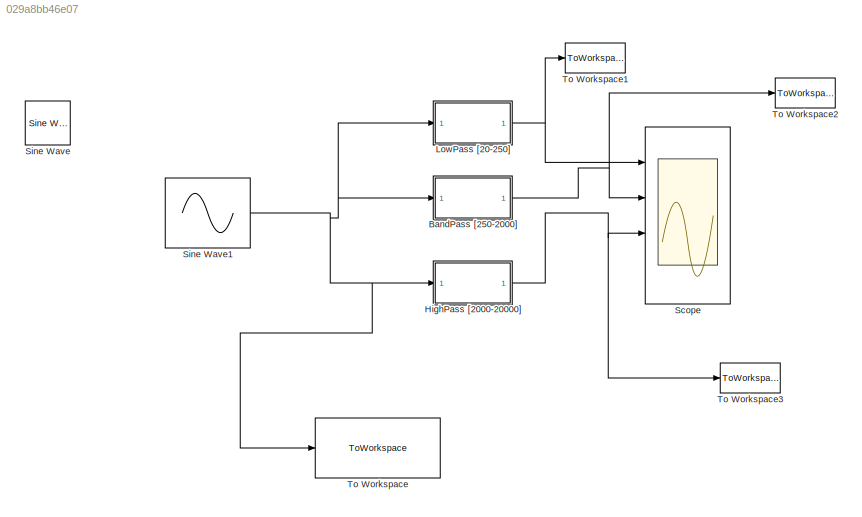
MODEL slx_029a8bb46e07
KIND model
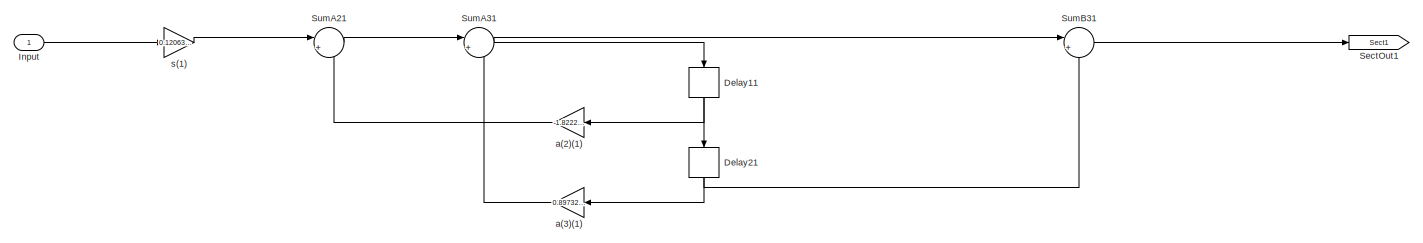
[diagram: BandPass [250-2000] - part 1/3, left side, full height]
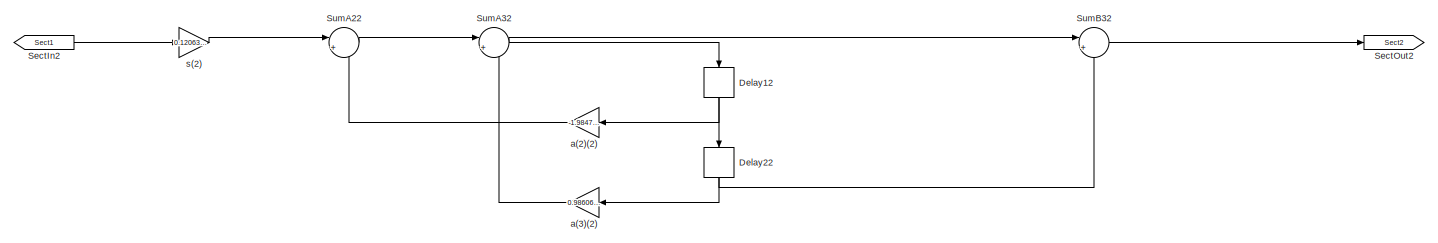
[diagram: BandPass [250-2000] - part 2/3, center side, full height]
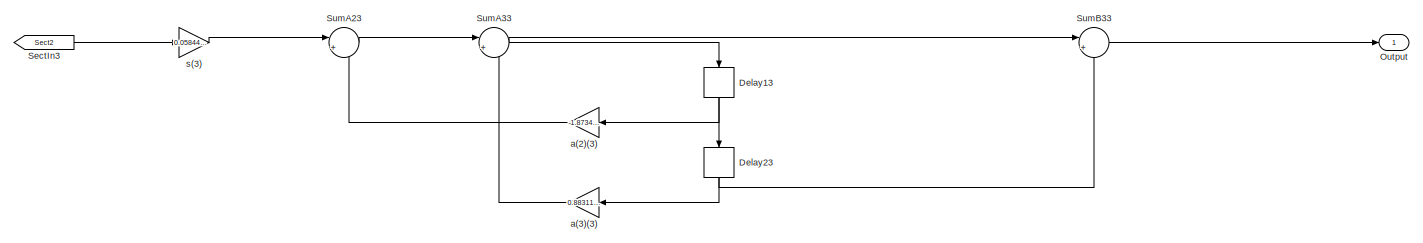
[diagram: BandPass [250-2000] - part 3/3, right side, full height]
BLOCK [SubSystem] BandPass [250-2000]
  ErrorFcn = dspFilterRealizedInBasicElemsAlgLoopErrFcnCallback
  Ports = [1, 1]
  RequestExecContextInheritance = off
  Tag = FilterWizardSubSystem
  UserDataPersistent = on
BLOCK [Delay] BandPass [250-2000]/Delay11
  DelayLength = 1
  InitialCondition = 0
  InputPortMap = u0
  Ports = [1, 1]
BLOCK [Delay] BandPass [250-2000]/Delay12
  DelayLength = 1
  InitialCondition = 0
  InputPortMap = u0
  Ports = [1, 1]
BLOCK [Delay] BandPass [250-2000]/Delay13
  DelayLength = 1
  InitialCondition = 0
  InputPortMap = u0
  Ports = [1, 1]
BLOCK [Delay] BandPass [250-2000]/Delay21
  DelayLength = 1
  InitialCondition = 0
  InputPortMap = u0
  Ports = [1, 1]
BLOCK [Delay] BandPass [250-2000]/Delay22
  DelayLength = 1
  InitialCondition = 0
  InputPortMap = u0
  Ports = [1, 1]
BLOCK [Delay] BandPass [250-2000]/Delay23
  DelayLength = 1
  InitialCondition = 0
  InputPortMap = u0
  Ports = [1, 1]
BLOCK [Inport] BandPass [250-2000]/Input
  IconDisplay = Port number
BLOCK [Outport] BandPass [250-2000]/Output
  IconDisplay = Port number
BLOCK [From] BandPass [250-2000]/SectIn2
  GotoTag = Sect1
BLOCK [From] BandPass [250-2000]/SectIn3
  GotoTag = Sect2
BLOCK [Goto] BandPass [250-2000]/SectOut1
  GotoTag = Sect1
BLOCK [Goto] BandPass [250-2000]/SectOut2
  GotoTag = Sect2
BLOCK [Sum] BandPass [250-2000]/SumA21
  IconShape = round
  InputSameDT = off
  Inputs = |+-
  Ports = [2, 1]
  RndMeth = Nearest
BLOCK [Sum] BandPass [250-2000]/SumA22
  IconShape = round
  InputSameDT = off
  Inputs = |+-
  Ports = [2, 1]
  RndMeth = Nearest
BLOCK [Sum] BandPass [250-2000]/SumA23
  IconShape = round
  InputSameDT = off
  Inputs = |+-
  Ports = [2, 1]
  RndMeth = Nearest
BLOCK [Sum] BandPass [250-2000]/SumA31
  IconShape = round
  InputSameDT = off
  Inputs = |+-
  Ports = [2, 1]
  RndMeth = Nearest
BLOCK [Sum] BandPass [250-2000]/SumA32
  IconShape = round
  InputSameDT = off
  Inputs = |+-
  Ports = [2, 1]
  RndMeth = Nearest
BLOCK [Sum] BandPass [250-2000]/SumA33
  IconShape = round
  InputSameDT = off
  Inputs = |+-
  Ports = [2, 1]
  RndMeth = Nearest
BLOCK [Sum] BandPass [250-2000]/SumB31
  IconShape = round
  InputSameDT = off
  Inputs = |+-
  Ports = [2, 1]
  RndMeth = Nearest
BLOCK [Sum] BandPass [250-2000]/SumB32
  IconShape = round
  InputSameDT = off
  Inputs = |+-
  Ports = [2, 1]
  RndMeth = Nearest
BLOCK [Sum] BandPass [250-2000]/SumB33
  IconShape = round
  InputSameDT = off
  Inputs = |+-
  Ports = [2, 1]
  RndMeth = Nearest
BLOCK [Gain] BandPass [250-2000]/a(2)(1)
  Gain = -1.8222439468229006
  ParamDataTypeStr = double
  RndMeth = Nearest
BLOCK [Gain] BandPass [250-2000]/a(2)(2)
  Gain = -1.9847657876244835
  ParamDataTypeStr = double
  RndMeth = Nearest
BLOCK [Gain] BandPass [250-2000]/a(2)(3)
  Gain = -1.8734732804598271
  ParamDataTypeStr = double
  RndMeth = Nearest
BLOCK [Gain] BandPass [250-2000]/a(3)(1)
  Gain = 0.89732349980267245
  ParamDataTypeStr = double
  RndMeth = Nearest
BLOCK [Gain] BandPass [250-2000]/a(3)(2)
  Gain = 0.9860617879432173
  ParamDataTypeStr = double
  RndMeth = Nearest
BLOCK [Gain] BandPass [250-2000]/a(3)(3)
  Gain = 0.88311535089014226
  ParamDataTypeStr = double
  RndMeth = Nearest
BLOCK [Gain] BandPass [250-2000]/s(1)
  Gain = 0.12063728325831817
  ParamDataTypeStr = double
  RndMeth = Nearest
BLOCK [Gain] BandPass [250-2000]/s(2)
  Gain = 0.12063728325831817
  ParamDataTypeStr = double
  RndMeth = Nearest
BLOCK [Gain] BandPass [250-2000]/s(3)
  Gain = 0.058442324554928891
  ParamDataTypeStr = double
  RndMeth = Nearest
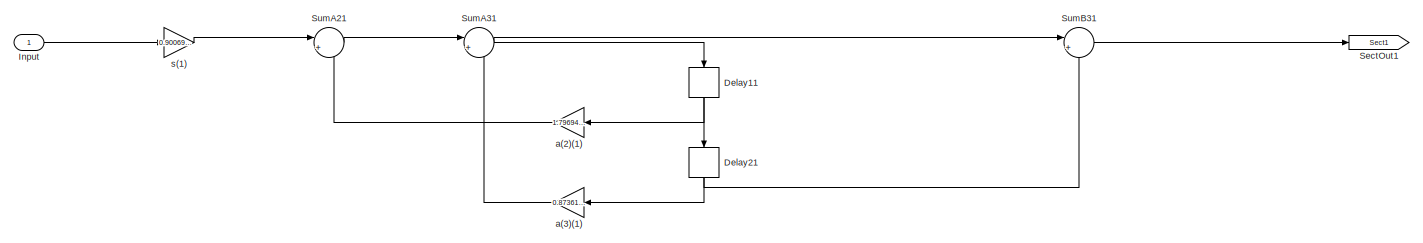
[diagram: HighPass [2000-20000] - part 1/3, left side, full height]
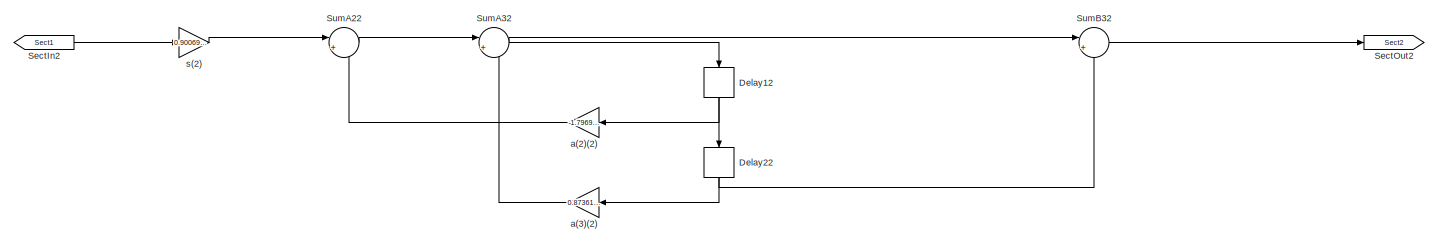
[diagram: HighPass [2000-20000] - part 2/3, center side, full height]
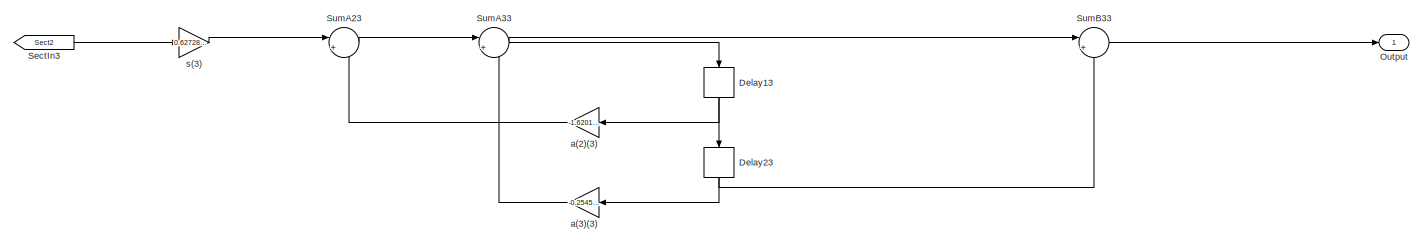
[diagram: HighPass [2000-20000] - part 3/3, right side, full height]
BLOCK [SubSystem] HighPass [2000-20000]
  ErrorFcn = dspFilterRealizedInBasicElemsAlgLoopErrFcnCallback
  Ports = [1, 1]
  RequestExecContextInheritance = off
  Tag = FilterWizardSubSystem
  UserDataPersistent = on
BLOCK [Delay] HighPass [2000-20000]/Delay11
  DelayLength = 1
  InitialCondition = 0
  InputPortMap = u0
  Ports = [1, 1]
BLOCK [Delay] HighPass [2000-20000]/Delay12
  DelayLength = 1
  InitialCondition = 0
  InputPortMap = u0
  Ports = [1, 1]
BLOCK [Delay] HighPass [2000-20000]/Delay13
  DelayLength = 1
  InitialCondition = 0
  InputPortMap = u0
  Ports = [1, 1]
BLOCK [Delay] HighPass [2000-20000]/Delay21
  DelayLength = 1
  InitialCondition = 0
  InputPortMap = u0
  Ports = [1, 1]
BLOCK [Delay] HighPass [2000-20000]/Delay22
  DelayLength = 1
  InitialCondition = 0
  InputPortMap = u0
  Ports = [1, 1]
BLOCK [Delay] HighPass [2000-20000]/Delay23
  DelayLength = 1
  InitialCondition = 0
  InputPortMap = u0
  Ports = [1, 1]
BLOCK [Inport] HighPass [2000-20000]/Input
  IconDisplay = Port number
BLOCK [Outport] HighPass [2000-20000]/Output
  IconDisplay = Port number
BLOCK [From] HighPass [2000-20000]/SectIn2
  GotoTag = Sect1
BLOCK [From] HighPass [2000-20000]/SectIn3
  GotoTag = Sect2
BLOCK [Goto] HighPass [2000-20000]/SectOut1
  GotoTag = Sect1
BLOCK [Goto] HighPass [2000-20000]/SectOut2
  GotoTag = Sect2
BLOCK [Sum] HighPass [2000-20000]/SumA21
  IconShape = round
  InputSameDT = off
  Inputs = |+-
  Ports = [2, 1]
  RndMeth = Nearest
BLOCK [Sum] HighPass [2000-20000]/SumA22
  IconShape = round
  InputSameDT = off
  Inputs = |+-
  Ports = [2, 1]
  RndMeth = Nearest
BLOCK [Sum] HighPass [2000-20000]/SumA23
  IconShape = round
  InputSameDT = off
  Inputs = |+-
  Ports = [2, 1]
  RndMeth = Nearest
BLOCK [Sum] HighPass [2000-20000]/SumA31
  IconShape = round
  InputSameDT = off
  Inputs = |+-
  Ports = [2, 1]
  RndMeth = Nearest
BLOCK [Sum] HighPass [2000-20000]/SumA32
  IconShape = round
  InputSameDT = off
  Inputs = |+-
  Ports = [2, 1]
  RndMeth = Nearest
BLOCK [Sum] HighPass [2000-20000]/SumA33
  IconShape = round
  InputSameDT = off
  Inputs = |+-
  Ports = [2, 1]
  RndMeth = Nearest
BLOCK [Sum] HighPass [2000-20000]/SumB31
  IconShape = round
  InputSameDT = off
  Inputs = |+-
  Ports = [2, 1]
  RndMeth = Nearest
BLOCK [Sum] HighPass [2000-20000]/SumB32
  IconShape = round
  InputSameDT = off
  Inputs = |+-
  Ports = [2, 1]
  RndMeth = Nearest
BLOCK [Sum] HighPass [2000-20000]/SumB33
  IconShape = round
  InputSameDT = off
  Inputs = |+-
  Ports = [2, 1]
  RndMeth = Nearest
BLOCK [Gain] HighPass [2000-20000]/a(2)(1)
  Gain = 1.7969485764693973
  ParamDataTypeStr = double
  RndMeth = Nearest
BLOCK [Gain] HighPass [2000-20000]/a(2)(2)
  Gain = -1.7969485764693991
  ParamDataTypeStr = double
  RndMeth = Nearest
BLOCK [Gain] HighPass [2000-20000]/a(2)(3)
  Gain = -1.6201479528634418e-16
  ParamDataTypeStr = double
  RndMeth = Nearest
BLOCK [Gain] HighPass [2000-20000]/a(3)(1)
  Gain = 0.87361347098914632
  ParamDataTypeStr = double
  RndMeth = Nearest
BLOCK [Gain] HighPass [2000-20000]/a(3)(2)
  Gain = 0.87361347098914788
  ParamDataTypeStr = double
  RndMeth = Nearest
BLOCK [Gain] HighPass [2000-20000]/a(3)(3)
  Gain = -0.25456315153165321
  ParamDataTypeStr = double
  RndMeth = Nearest
BLOCK [Gain] HighPass [2000-20000]/s(1)
  Gain = 0.90069386325082867
  ParamDataTypeStr = double
  RndMeth = Nearest
BLOCK [Gain] HighPass [2000-20000]/s(2)
  Gain = 0.90069386325082867
  ParamDataTypeStr = double
  RndMeth = Nearest
BLOCK [Gain] HighPass [2000-20000]/s(3)
  Gain = 0.62728157576582666
  ParamDataTypeStr = double
  RndMeth = Nearest
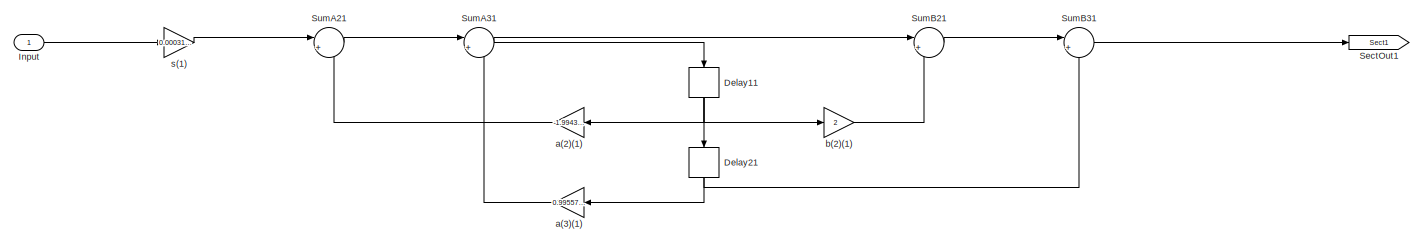
[diagram: LowPass [20-250] - part 1/3, left side, full height]
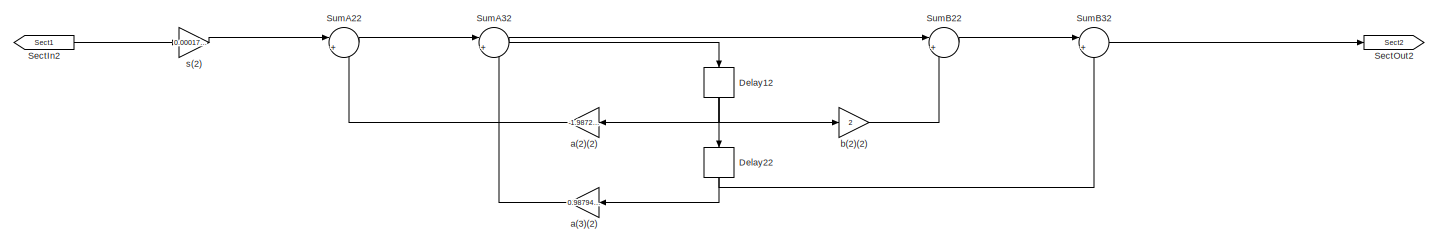
[diagram: LowPass [20-250] - part 2/3, center side, full height]
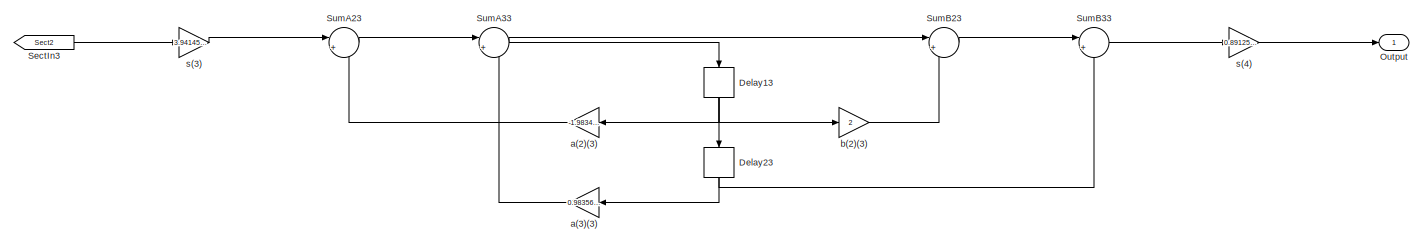
[diagram: LowPass [20-250] - part 3/3, right side, full height]
BLOCK [SubSystem] LowPass [20-250]
  ErrorFcn = dspFilterRealizedInBasicElemsAlgLoopErrFcnCallback
  Ports = [1, 1]
  RequestExecContextInheritance = off
  Tag = FilterWizardSubSystem
  UserDataPersistent = on
BLOCK [Delay] LowPass [20-250]/Delay11
  DelayLength = 1
  InitialCondition = 0
  InputPortMap = u0
  Ports = [1, 1]
BLOCK [Delay] LowPass [20-250]/Delay12
  DelayLength = 1
  InitialCondition = 0
  InputPortMap = u0
  Ports = [1, 1]
BLOCK [Delay] LowPass [20-250]/Delay13
  DelayLength = 1
  InitialCondition = 0
  InputPortMap = u0
  Ports = [1, 1]
BLOCK [Delay] LowPass [20-250]/Delay21
  DelayLength = 1
  InitialCondition = 0
  InputPortMap = u0
  Ports = [1, 1]
BLOCK [Delay] LowPass [20-250]/Delay22
  DelayLength = 1
  InitialCondition = 0
  InputPortMap = u0
  Ports = [1, 1]
BLOCK [Delay] LowPass [20-250]/Delay23
  DelayLength = 1
  InitialCondition = 0
  InputPortMap = u0
  Ports = [1, 1]
BLOCK [Inport] LowPass [20-250]/Input
  IconDisplay = Port number
BLOCK [Outport] LowPass [20-250]/Output
  IconDisplay = Port number
BLOCK [From] LowPass [20-250]/SectIn2
  GotoTag = Sect1
BLOCK [From] LowPass [20-250]/SectIn3
  GotoTag = Sect2
BLOCK [Goto] LowPass [20-250]/SectOut1
  GotoTag = Sect1
BLOCK [Goto] LowPass [20-250]/SectOut2
  GotoTag = Sect2
BLOCK [Sum] LowPass [20-250]/SumA21
  IconShape = round
  InputSameDT = off
  Inputs = |+-
  Ports = [2, 1]
  RndMeth = Nearest
BLOCK [Sum] LowPass [20-250]/SumA22
  IconShape = round
  InputSameDT = off
  Inputs = |+-
  Ports = [2, 1]
  RndMeth = Nearest
BLOCK [Sum] LowPass [20-250]/SumA23
  IconShape = round
  InputSameDT = off
  Inputs = |+-
  Ports = [2, 1]
  RndMeth = Nearest
BLOCK [Sum] LowPass [20-250]/SumA31
  IconShape = round
  InputSameDT = off
  Inputs = |+-
  Ports = [2, 1]
  RndMeth = Nearest
BLOCK [Sum] LowPass [20-250]/SumA32
  IconShape = round
  InputSameDT = off
  Inputs = |+-
  Ports = [2, 1]
  RndMeth = Nearest
BLOCK [Sum] LowPass [20-250]/SumA33
  IconShape = round
  InputSameDT = off
  Inputs = |+-
  Ports = [2, 1]
  RndMeth = Nearest
BLOCK [Sum] LowPass [20-250]/SumB21
  IconShape = round
  InputSameDT = off
  Inputs = |++
  Ports = [2, 1]
  RndMeth = Nearest
BLOCK [Sum] LowPass [20-250]/SumB22
  IconShape = round
  InputSameDT = off
  Inputs = |++
  Ports = [2, 1]
  RndMeth = Nearest
BLOCK [Sum] LowPass [20-250]/SumB23
  IconShape = round
  InputSameDT = off
  Inputs = |++
  Ports = [2, 1]
  RndMeth = Nearest
BLOCK [Sum] LowPass [20-250]/SumB31
  IconShape = round
  InputSameDT = off
  Inputs = |++
  Ports = [2, 1]
  RndMeth = Nearest
BLOCK [Sum] LowPass [20-250]/SumB32
  IconShape = round
  InputSameDT = off
  Inputs = |++
  Ports = [2, 1]
  RndMeth = Nearest
BLOCK [Sum] LowPass [20-250]/SumB33
  IconShape = round
  InputSameDT = off
  Inputs = |++
  Ports = [2, 1]
  RndMeth = Nearest
BLOCK [Gain] LowPass [20-250]/a(2)(1)
  Gain = -1.9943112985072202
  ParamDataTypeStr = double
  RndMeth = Nearest
BLOCK [Gain] LowPass [20-250]/a(2)(2)
  Gain = -1.9872379053064775
  ParamDataTypeStr = double
  RndMeth = Nearest
BLOCK [Gain] LowPass [20-250]/a(2)(3)
  Gain = -1.9834081595064164
  ParamDataTypeStr = double
  RndMeth = Nearest
BLOCK [Gain] LowPass [20-250]/a(3)(1)
  Gain = 0.99557104476447722
  ParamDataTypeStr = double
  RndMeth = Nearest
BLOCK [Gain] LowPass [20-250]/a(3)(2)
  Gain = 0.98794444997925868
  ParamDataTypeStr = double
  RndMeth = Nearest
BLOCK [Gain] LowPass [20-250]/a(3)(3)
  Gain = 0.98356581767528617
  ParamDataTypeStr = double
  RndMeth = Nearest
BLOCK [Gain] LowPass [20-250]/b(2)(1)
  Gain = 2
  ParamDataTypeStr = double
  RndMeth = Nearest
BLOCK [Gain] LowPass [20-250]/b(2)(2)
  Gain = 2
  ParamDataTypeStr = double
  RndMeth = Nearest
BLOCK [Gain] LowPass [20-250]/b(2)(3)
  Gain = 2
  ParamDataTypeStr = double
  RndMeth = Nearest
BLOCK [Gain] LowPass [20-250]/s(1)
  Gain = 0.00031493656431420792
  ParamDataTypeStr = double
  RndMeth = Nearest
BLOCK [Gain] LowPass [20-250]/s(2)
  Gain = 0.00017663616819536151
  ParamDataTypeStr = double
  RndMeth = Nearest
BLOCK [Gain] LowPass [20-250]/s(3)
  Gain = 3.9414542217479411e-05
  ParamDataTypeStr = double
  RndMeth = Nearest
BLOCK [Gain] LowPass [20-250]/s(4)
  Gain = 0.89125093813374556
  ParamDataTypeStr = double
  RndMeth = Nearest
BLOCK [Scope] Scope
  Floating = off
  NumInputPorts = 4
  Ports = [4]
  ShowLegends = off
  YMax = 2e-05~1~0.1~1
  YMin = -2e-05~-1~-0.1~-1
BLOCK [Reference] Sine Wave  REF=dspsrcs4/Sine Wave
  Amplitude = 1
  CompMethod = Trigonometric fcn
  Frequency = 9000
  LastOutDataTypeStr = double
  OutComplex = Real
  OutDataTypeStr = double
  Phase = 0
  Ports = [0, 1]
  ResetState = Restart at time zero
  SampleMode = Discrete
  SampleTime = 1/44000
  SamplesPerFrame = 1
  SourceBlock = dspsrcs4/Sine Wave
  SourceType = Sine Wave
  TableSize = Speed
  additionalParams = off
  allowOverrides = on
  dataType = double
  fracBitsMode = Best precision
  numFracBits = 15
  udDataType = sfix(16)
  wordLen = 16
BLOCK [Sin] Sine Wave1
  Frequency = 2*pi*9000
  Ports = [0, 1]
  SampleTime = 1/44000
BLOCK [ToWorkspace] To Workspace
  FixptAsFi = on
  MaxDataPoints = 1024
  Ports = [1]
  SampleTime = -1
  Save2DSignal = 3-D array (concatenate along third dimension)
  VariableName = SenalEntrada
BLOCK [ToWorkspace] To Workspace1
  FixptAsFi = on
  MaxDataPoints = 1024
  Ports = [1]
  SampleTime = -1
  Save2DSignal = 3-D array (concatenate along third dimension)
  VariableName = Filtro1
BLOCK [ToWorkspace] To Workspace2
  FixptAsFi = on
  MaxDataPoints = 1024
  Ports = [1]
  SampleTime = -1
  Save2DSignal = 3-D array (concatenate along third dimension)
  VariableName = Filtro2
BLOCK [ToWorkspace] To Workspace3
  FixptAsFi = on
  MaxDataPoints = 1024
  Ports = [1]
  SampleTime = -1
  Save2DSignal = 3-D array (concatenate along third dimension)
  VariableName = Filtro3
NET BandPass [250-2000]/Delay11:1 -> BandPass [250-2000]/Delay21:1, BandPass [250-2000]/a(2)(1):1
NET BandPass [250-2000]/Delay12:1 -> BandPass [250-2000]/Delay22:1, BandPass [250-2000]/a(2)(2):1
NET BandPass [250-2000]/Delay13:1 -> BandPass [250-2000]/Delay23:1, BandPass [250-2000]/a(2)(3):1
NET BandPass [250-2000]/Delay21:1 -> BandPass [250-2000]/SumB31:2, BandPass [250-2000]/a(3)(1):1
NET BandPass [250-2000]/Delay22:1 -> BandPass [250-2000]/SumB32:2, BandPass [250-2000]/a(3)(2):1
NET BandPass [250-2000]/Delay23:1 -> BandPass [250-2000]/SumB33:2, BandPass [250-2000]/a(3)(3):1
LINE BandPass [250-2000]/Input:1 -> BandPass [250-2000]/s(1):1
LINE BandPass [250-2000]/SectIn2:1 -> BandPass [250-2000]/s(2):1
LINE BandPass [250-2000]/SectIn3:1 -> BandPass [250-2000]/s(3):1
LINE BandPass [250-2000]/SumA21:1 -> BandPass [250-2000]/SumA31:1
LINE BandPass [250-2000]/SumA22:1 -> BandPass [250-2000]/SumA32:1
LINE BandPass [250-2000]/SumA23:1 -> BandPass [250-2000]/SumA33:1
NET BandPass [250-2000]/SumA31:1 -> BandPass [250-2000]/Delay11:1, BandPass [250-2000]/SumB31:1
NET BandPass [250-2000]/SumA32:1 -> BandPass [250-2000]/Delay12:1, BandPass [250-2000]/SumB32:1
NET BandPass [250-2000]/SumA33:1 -> BandPass [250-2000]/Delay13:1, BandPass [250-2000]/SumB33:1
LINE BandPass [250-2000]/SumB31:1 -> BandPass [250-2000]/SectOut1:1
LINE BandPass [250-2000]/SumB32:1 -> BandPass [250-2000]/SectOut2:1
LINE BandPass [250-2000]/SumB33:1 -> BandPass [250-2000]/Output:1
LINE BandPass [250-2000]/a(2)(1):1 -> BandPass [250-2000]/SumA21:2
LINE BandPass [250-2000]/a(2)(2):1 -> BandPass [250-2000]/SumA22:2
LINE BandPass [250-2000]/a(2)(3):1 -> BandPass [250-2000]/SumA23:2
LINE BandPass [250-2000]/a(3)(1):1 -> BandPass [250-2000]/SumA31:2
LINE BandPass [250-2000]/a(3)(2):1 -> BandPass [250-2000]/SumA32:2
LINE BandPass [250-2000]/a(3)(3):1 -> BandPass [250-2000]/SumA33:2
LINE BandPass [250-2000]/s(1):1 -> BandPass [250-2000]/SumA21:1
LINE BandPass [250-2000]/s(2):1 -> BandPass [250-2000]/SumA22:1
LINE BandPass [250-2000]/s(3):1 -> BandPass [250-2000]/SumA23:1
NET BandPass [250-2000]:1 -> Scope:2, To Workspace2:1
NET HighPass [2000-20000]/Delay11:1 -> HighPass [2000-20000]/Delay21:1, HighPass [2000-20000]/a(2)(1):1
NET HighPass [2000-20000]/Delay12:1 -> HighPass [2000-20000]/Delay22:1, HighPass [2000-20000]/a(2)(2):1
NET HighPass [2000-20000]/Delay13:1 -> HighPass [2000-20000]/Delay23:1, HighPass [2000-20000]/a(2)(3):1
NET HighPass [2000-20000]/Delay21:1 -> HighPass [2000-20000]/SumB31:2, HighPass [2000-20000]/a(3)(1):1
NET HighPass [2000-20000]/Delay22:1 -> HighPass [2000-20000]/SumB32:2, HighPass [2000-20000]/a(3)(2):1
NET HighPass [2000-20000]/Delay23:1 -> HighPass [2000-20000]/SumB33:2, HighPass [2000-20000]/a(3)(3):1
LINE HighPass [2000-20000]/Input:1 -> HighPass [2000-20000]/s(1):1
LINE HighPass [2000-20000]/SectIn2:1 -> HighPass [2000-20000]/s(2):1
LINE HighPass [2000-20000]/SectIn3:1 -> HighPass [2000-20000]/s(3):1
LINE HighPass [2000-20000]/SumA21:1 -> HighPass [2000-20000]/SumA31:1
LINE HighPass [2000-20000]/SumA22:1 -> HighPass [2000-20000]/SumA32:1
LINE HighPass [2000-20000]/SumA23:1 -> HighPass [2000-20000]/SumA33:1
NET HighPass [2000-20000]/SumA31:1 -> HighPass [2000-20000]/Delay11:1, HighPass [2000-20000]/SumB31:1
NET HighPass [2000-20000]/SumA32:1 -> HighPass [2000-20000]/Delay12:1, HighPass [2000-20000]/SumB32:1
NET HighPass [2000-20000]/SumA33:1 -> HighPass [2000-20000]/Delay13:1, HighPass [2000-20000]/SumB33:1
LINE HighPass [2000-20000]/SumB31:1 -> HighPass [2000-20000]/SectOut1:1
LINE HighPass [2000-20000]/SumB32:1 -> HighPass [2000-20000]/SectOut2:1
LINE HighPass [2000-20000]/SumB33:1 -> HighPass [2000-20000]/Output:1
LINE HighPass [2000-20000]/a(2)(1):1 -> HighPass [2000-20000]/SumA21:2
LINE HighPass [2000-20000]/a(2)(2):1 -> HighPass [2000-20000]/SumA22:2
LINE HighPass [2000-20000]/a(2)(3):1 -> HighPass [2000-20000]/SumA23:2
LINE HighPass [2000-20000]/a(3)(1):1 -> HighPass [2000-20000]/SumA31:2
LINE HighPass [2000-20000]/a(3)(2):1 -> HighPass [2000-20000]/SumA32:2
LINE HighPass [2000-20000]/a(3)(3):1 -> HighPass [2000-20000]/SumA33:2
LINE HighPass [2000-20000]/s(1):1 -> HighPass [2000-20000]/SumA21:1
LINE HighPass [2000-20000]/s(2):1 -> HighPass [2000-20000]/SumA22:1
LINE HighPass [2000-20000]/s(3):1 -> HighPass [2000-20000]/SumA23:1
NET HighPass [2000-20000]:1 -> Scope:3, To Workspace3:1
NET LowPass [20-250]/Delay11:1 -> LowPass [20-250]/Delay21:1, LowPass [20-250]/a(2)(1):1, LowPass [20-250]/b(2)(1):1
NET LowPass [20-250]/Delay12:1 -> LowPass [20-250]/Delay22:1, LowPass [20-250]/a(2)(2):1, LowPass [20-250]/b(2)(2):1
NET LowPass [20-250]/Delay13:1 -> LowPass [20-250]/Delay23:1, LowPass [20-250]/a(2)(3):1, LowPass [20-250]/b(2)(3):1
NET LowPass [20-250]/Delay21:1 -> LowPass [20-250]/SumB31:2, LowPass [20-250]/a(3)(1):1
NET LowPass [20-250]/Delay22:1 -> LowPass [20-250]/SumB32:2, LowPass [20-250]/a(3)(2):1
NET LowPass [20-250]/Delay23:1 -> LowPass [20-250]/SumB33:2, LowPass [20-250]/a(3)(3):1
LINE LowPass [20-250]/Input:1 -> LowPass [20-250]/s(1):1
LINE LowPass [20-250]/SectIn2:1 -> LowPass [20-250]/s(2):1
LINE LowPass [20-250]/SectIn3:1 -> LowPass [20-250]/s(3):1
LINE LowPass [20-250]/SumA21:1 -> LowPass [20-250]/SumA31:1
LINE LowPass [20-250]/SumA22:1 -> LowPass [20-250]/SumA32:1
LINE LowPass [20-250]/SumA23:1 -> LowPass [20-250]/SumA33:1
NET LowPass [20-250]/SumA31:1 -> LowPass [20-250]/Delay11:1, LowPass [20-250]/SumB21:1
NET LowPass [20-250]/SumA32:1 -> LowPass [20-250]/Delay12:1, LowPass [20-250]/SumB22:1
NET LowPass [20-250]/SumA33:1 -> LowPass [20-250]/Delay13:1, LowPass [20-250]/SumB23:1
LINE LowPass [20-250]/SumB21:1 -> LowPass [20-250]/SumB31:1
LINE LowPass [20-250]/SumB22:1 -> LowPass [20-250]/SumB32:1
LINE LowPass [20-250]/SumB23:1 -> LowPass [20-250]/SumB33:1
LINE LowPass [20-250]/SumB31:1 -> LowPass [20-250]/SectOut1:1
LINE LowPass [20-250]/SumB32:1 -> LowPass [20-250]/SectOut2:1
LINE LowPass [20-250]/SumB33:1 -> LowPass [20-250]/s(4):1
LINE LowPass [20-250]/a(2)(1):1 -> LowPass [20-250]/SumA21:2
LINE LowPass [20-250]/a(2)(2):1 -> LowPass [20-250]/SumA22:2
LINE LowPass [20-250]/a(2)(3):1 -> LowPass [20-250]/SumA23:2
LINE LowPass [20-250]/a(3)(1):1 -> LowPass [20-250]/SumA31:2
LINE LowPass [20-250]/a(3)(2):1 -> LowPass [20-250]/SumA32:2
LINE LowPass [20-250]/a(3)(3):1 -> LowPass [20-250]/SumA33:2
LINE LowPass [20-250]/b(2)(1):1 -> LowPass [20-250]/SumB21:2
LINE LowPass [20-250]/b(2)(2):1 -> LowPass [20-250]/SumB22:2
LINE LowPass [20-250]/b(2)(3):1 -> LowPass [20-250]/SumB23:2
LINE LowPass [20-250]/s(1):1 -> LowPass [20-250]/SumA21:1
LINE LowPass [20-250]/s(2):1 -> LowPass [20-250]/SumA22:1
LINE LowPass [20-250]/s(3):1 -> LowPass [20-250]/SumA23:1
LINE LowPass [20-250]/s(4):1 -> LowPass [20-250]/Output:1
NET LowPass [20-250]:1 -> Scope:1, To Workspace1:1
NET Sine Wave1:1 -> BandPass [250-2000]:1, HighPass [2000-20000]:1, LowPass [20-250]:1, To Workspace:1
note: NET lines group one-source signal fan-out (src -> all destinations, sorted); 1:1 wires keep LINE
